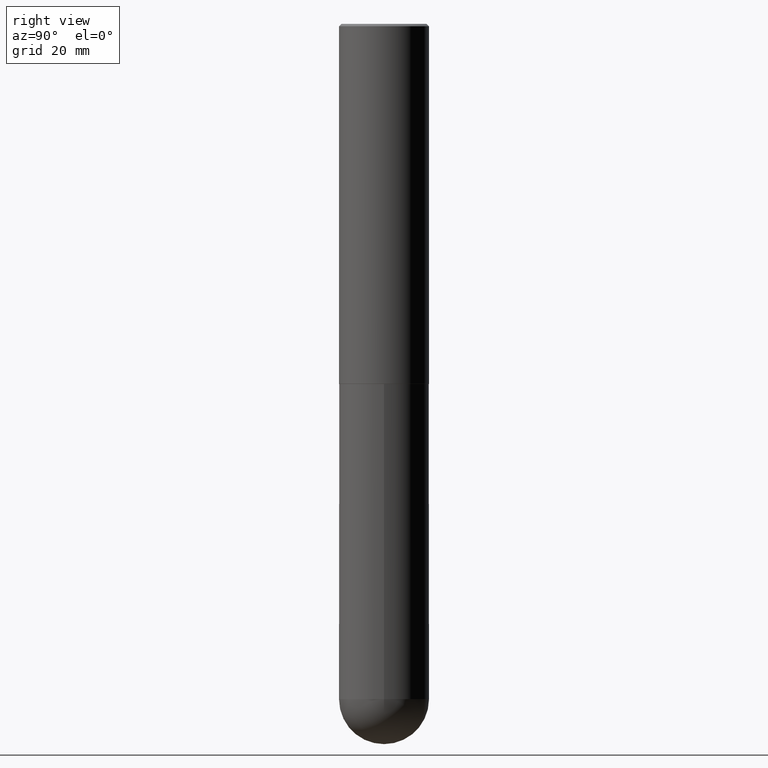
[diagram: clean part render]
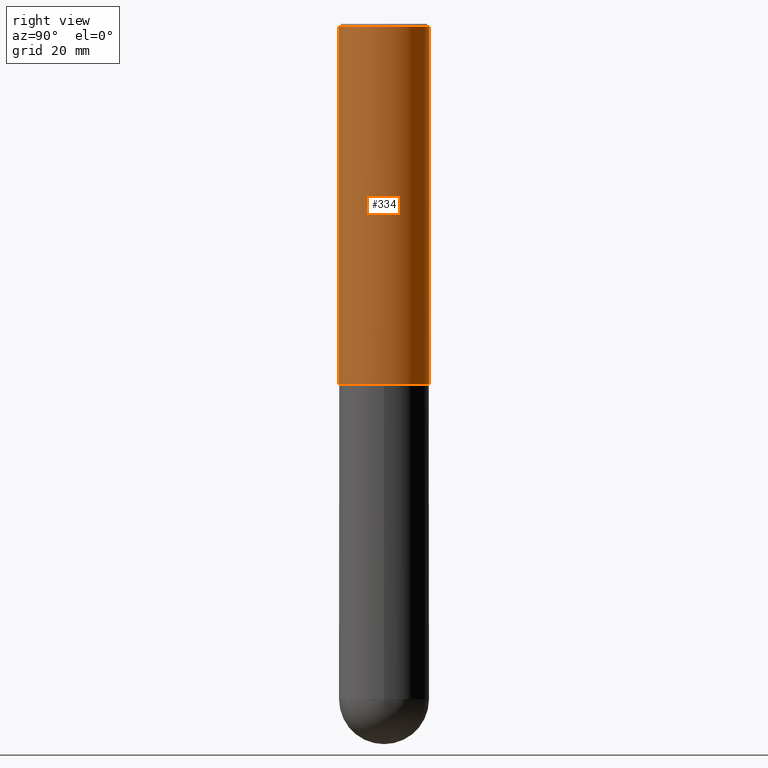
[diagram: same view with one face highlighted and labeled with its STEP entity id]
A machine part, right view. The second image highlights one B-rep face of the part: STEP entity #334.
In plain terms, the highlighted cylindrical surface (partial cylindrical patch) has radius 9.525 mm, axis along (-0, 0, 1).
Its self-contained STEP definition (entity closure, byte-faithful):
#12 = DIRECTION ( 'NONE',  ( -2.445691460240369790E-29, 3.491162485563369808E-15, 1.000000000000000000 ) ) ;
#32 = EDGE_CURVE ( 'NONE', #156, #380, #408, .T. ) ;
#36 = ORIENTED_EDGE ( 'NONE', *, *, #137, .T. ) ;
#37 = CARTESIAN_POINT ( 'NONE',  ( 2.664535259100376486E-15, 0.3750000000000001665, -1.309185932086264368E-15 ) ) ;
#83 = DIRECTION ( 'NONE',  ( -6.982962677686266711E-15, -1.000000000000000000, 3.491162485563370203E-15 ) ) ;
#84 = DIRECTION ( 'NONE',  ( -6.982962677686265922E-15, -1.000000000000000000, 2.913971193241877611E-15 ) ) ;
#96 = VERTEX_POINT ( 'NONE', #290 ) ;
#113 = AXIS2_PLACEMENT_3D ( 'NONE', #173, #364, #84 ) ;
#127 = CARTESIAN_POINT ( 'NONE',  ( 0.000000000000000000, 0.000000000000000000, 0.000000000000000000 ) ) ;
#134 = EDGE_LOOP ( 'NONE', ( #36, #384, #151, #287 ) ) ;
#137 = EDGE_CURVE ( 'NONE', #96, #314, #170, .T. ) ;
#140 = CARTESIAN_POINT ( 'NONE',  ( -2.572686749164323153E-15, -0.3750000000000000555, -0.01999999999999877570 ) ) ;
#151 = ORIENTED_EDGE ( 'NONE', *, *, #32, .F. ) ;
#156 = VERTEX_POINT ( 'NONE', #140 ) ;
#162 = VECTOR ( 'NONE', #220, 39.37007874015748143 ) ;
#166 = CARTESIAN_POINT ( 'NONE',  ( 4.891382920480761335E-31, -6.982324971126768903E-17, -0.02000000000000008715 ) ) ;
#170 = CIRCLE ( 'NONE', #113, 0.3750000000000003886 ) ;
#173 = CARTESIAN_POINT ( 'NONE',  ( 7.334628689260870918E-29, -1.046999629420454738E-14, -2.999000000000000554 ) ) ;
#186 = CARTESIAN_POINT ( 'NONE',  ( 2.618611004132350016E-15, 0.3749999999999998890, -0.02000000000000139513 ) ) ;
#188 = EDGE_CURVE ( 'NONE', #314, #380, #302, .T. ) ;
#210 = FACE_OUTER_BOUND ( 'NONE', #134, .T. ) ;
#220 = DIRECTION ( 'NONE',  ( -2.445691460240369790E-29, 3.491162485563369808E-15, 1.000000000000000000 ) ) ;
#224 = VECTOR ( 'NONE', #411, 39.37007874015748143 ) ;
#246 = DIRECTION ( 'NONE',  ( -2.445691460240369790E-29, 3.491162485563369808E-15, 1.000000000000000000 ) ) ;
#287 = ORIENTED_EDGE ( 'NONE', *, *, #406, .F. ) ;
#290 = CARTESIAN_POINT ( 'NONE',  ( -2.618611004132279019E-15, -0.3750000000000108247, -2.998999999999999222 ) ) ;
#298 = AXIS2_PLACEMENT_3D ( 'NONE', #127, #246, #83 ) ;
#302 = LINE ( 'NONE', #37, #224 ) ;
#311 = CARTESIAN_POINT ( 'NONE',  ( 2.664535259100413562E-15, 0.3749999999999898970, -2.999000000000001442 ) ) ;
#314 = VERTEX_POINT ( 'NONE', #311 ) ;
#315 = CARTESIAN_POINT ( 'NONE',  ( -2.618611004132351200E-15, -0.3750000000000001665, 1.309185932086264368E-15 ) ) ;
#325 = LINE ( 'NONE', #315, #162 ) ;
#334 = ADVANCED_FACE ( 'NONE', ( #210 ), #379, .T. ) ;
#350 = AXIS2_PLACEMENT_3D ( 'NONE', #166, #12, #359 ) ;
#359 = DIRECTION ( 'NONE',  ( -6.982962677686266711E-15, -1.000000000000000000, 3.494488891895537218E-15 ) ) ;
#364 = DIRECTION ( 'NONE',  ( -2.445691460240369790E-29, 3.491162485563369808E-15, 1.000000000000000000 ) ) ;
#379 = CYLINDRICAL_SURFACE ( 'NONE', #298, 0.3750000000000001665 ) ;
#380 = VERTEX_POINT ( 'NONE', #186 ) ;
#384 = ORIENTED_EDGE ( 'NONE', *, *, #188, .T. ) ;
#406 = EDGE_CURVE ( 'NONE', #96, #156, #325, .T. ) ;
#408 = CIRCLE ( 'NONE', #350, 0.3749999999999999445 ) ;
#411 = DIRECTION ( 'NONE',  ( -2.445691460240369790E-29, 3.491162485563369808E-15, 1.000000000000000000 ) ) ;